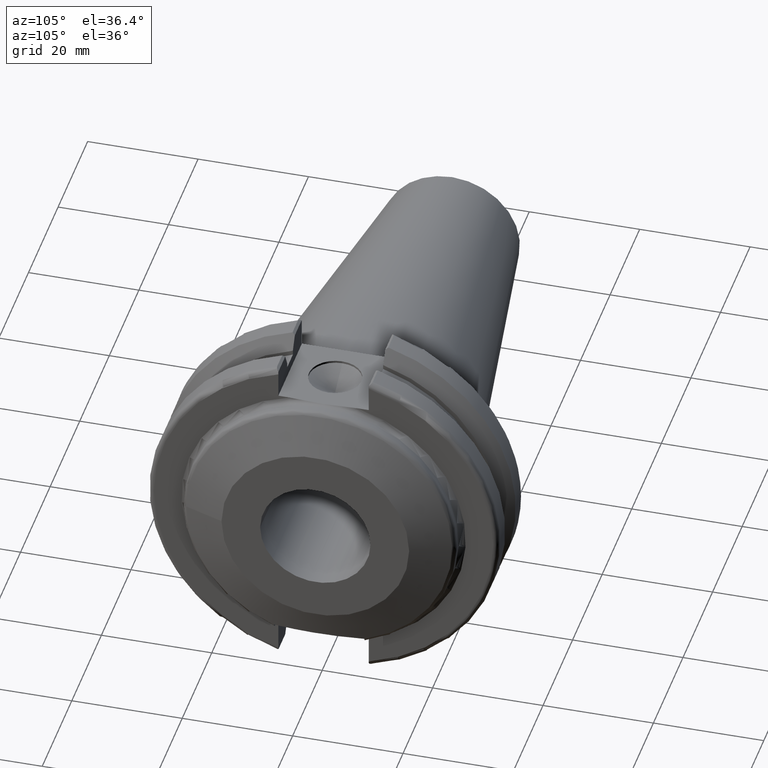
[diagram: clean part render]
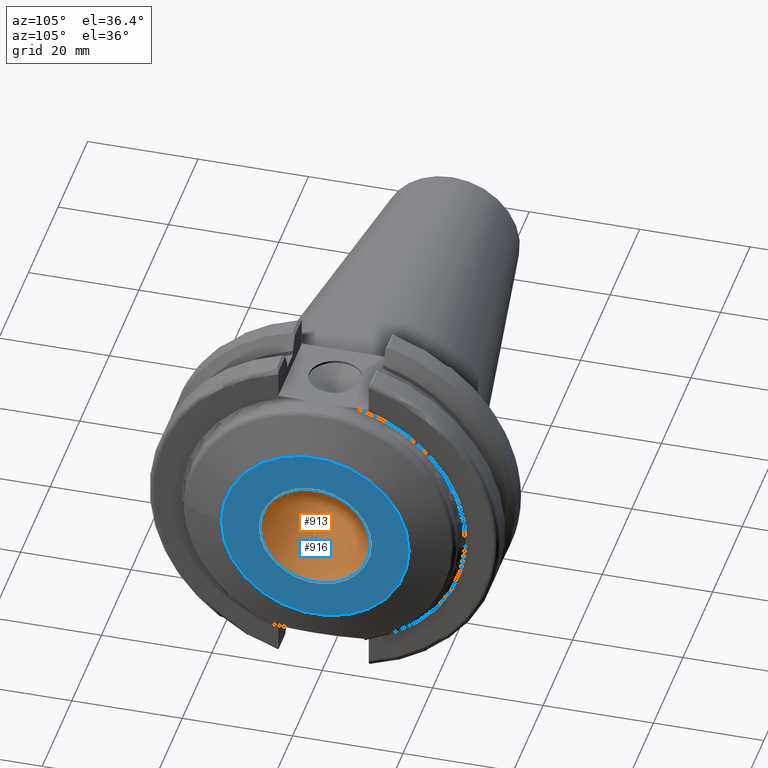
[diagram: same view with the hole feature highlighted: cylindrical wall and planar end face, labeled with their STEP entity ids]
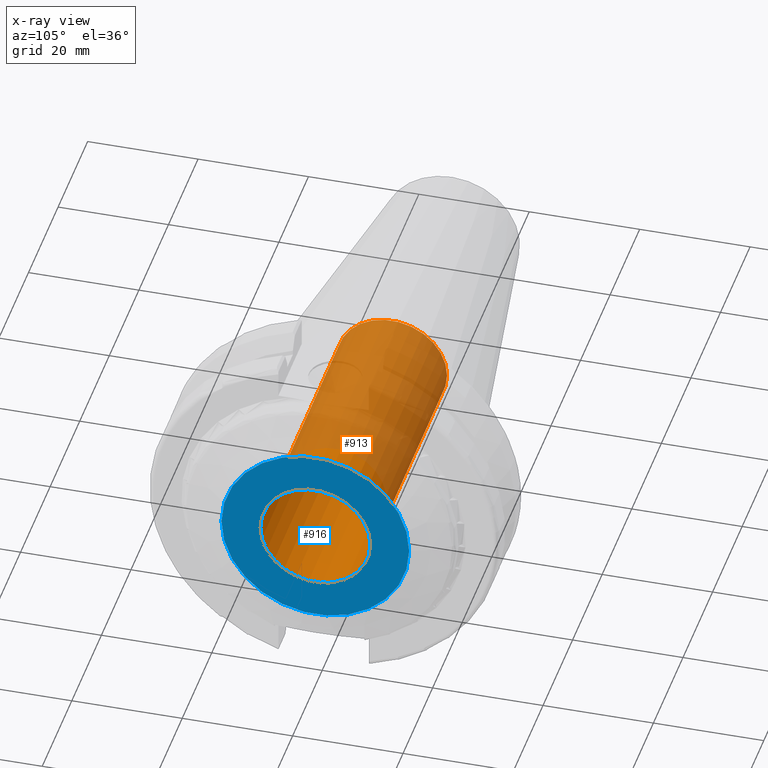
[diagram: x-ray of the same camera — body ghosted, the hole faces saturated]
A machine part, auxiliary view. The highlighted faces form one hole feature of diameter 20 mm: the cylindrical wall (entity #913, orange) and its adjacent planar end face (entity #916, blue) — they share a circular edge in the B-rep.
The next image is the same camera in x-ray (body ghosted, the hole faces saturated) — the bore reads through the body.
Wall:
#21=CYLINDRICAL_SURFACE('',#997,10.);
#54=LINE('',#1476,#110);
#110=VECTOR('',#1130,10.);
#202=FACE_OUTER_BOUND('',#255,.T.);
#255=EDGE_LOOP('',(#657,#658,#659,#660));
#315=CIRCLE('',#998,10.);
#316=CIRCLE('',#999,10.);
#403=VERTEX_POINT('',#1473);
#404=VERTEX_POINT('',#1475);
#504=EDGE_CURVE('',#403,#403,#315,.T.);
#505=EDGE_CURVE('',#403,#404,#54,.T.);
#506=EDGE_CURVE('',#404,#404,#316,.T.);
#657=ORIENTED_EDGE('',*,*,#504,.F.);
#658=ORIENTED_EDGE('',*,*,#505,.T.);
#659=ORIENTED_EDGE('',*,*,#506,.T.);
#660=ORIENTED_EDGE('',*,*,#505,.F.);
#913=ADVANCED_FACE('',(#202),#21,.F.);
#997=AXIS2_PLACEMENT_3D('',#1472,#1126,#1127);
#998=AXIS2_PLACEMENT_3D('',#1474,#1128,#1129);
#999=AXIS2_PLACEMENT_3D('',#1477,#1131,#1132);
#1126=DIRECTION('center_axis',(-1.,0.,0.));
#1127=DIRECTION('ref_axis',(0.,1.,0.));
#1128=DIRECTION('center_axis',(-1.,0.,0.));
#1129=DIRECTION('ref_axis',(0.,1.,0.));
#1130=DIRECTION('',(-1.,0.,0.));
#1131=DIRECTION('center_axis',(-1.,0.,0.));
#1132=DIRECTION('ref_axis',(0.,0.,1.));
#1472=CARTESIAN_POINT('Origin',(-1.25,0.,0.));
#1473=CARTESIAN_POINT('',(24.6,-10.,1.22464679914735E-15));
#1474=CARTESIAN_POINT('Origin',(24.6,0.,0.));
#1475=CARTESIAN_POINT('',(-27.1,-10.,1.22464679914735E-15));
#1476=CARTESIAN_POINT('',(-1.25,-10.,1.22464679914735E-15));
#1477=CARTESIAN_POINT('Origin',(-27.1,0.,0.));
End face:
#16=FACE_BOUND('',#260,.T.);
#175=PLANE('',#1003);
#205=FACE_OUTER_BOUND('',#259,.T.);
#259=EDGE_LOOP('',(#669));
#260=EDGE_LOOP('',(#670));
#310=CIRCLE('',#989,17.);
#315=CIRCLE('',#998,10.);
#394=VERTEX_POINT('',#1424);
#403=VERTEX_POINT('',#1473);
#490=EDGE_CURVE('',#394,#394,#310,.T.);
#504=EDGE_CURVE('',#403,#403,#315,.T.);
#669=ORIENTED_EDGE('',*,*,#490,.T.);
#670=ORIENTED_EDGE('',*,*,#504,.T.);
#916=ADVANCED_FACE('',(#205,#16),#175,.T.);
#989=AXIS2_PLACEMENT_3D('',#1425,#1105,#1106);
#998=AXIS2_PLACEMENT_3D('',#1474,#1128,#1129);
#1003=AXIS2_PLACEMENT_3D('',#1498,#1142,#1143);
#1105=DIRECTION('center_axis',(1.,0.,0.));
#1106=DIRECTION('ref_axis',(0.,0.,-1.));
#1128=DIRECTION('center_axis',(-1.,0.,0.));
#1129=DIRECTION('ref_axis',(0.,1.,0.));
#1142=DIRECTION('center_axis',(1.,0.,0.));
#1143=DIRECTION('ref_axis',(0.,0.,-1.));
#1424=CARTESIAN_POINT('',(24.6,-17.,-2.0818995585505E-15));
#1425=CARTESIAN_POINT('Origin',(24.6,0.,0.));
#1473=CARTESIAN_POINT('',(24.6,-10.,1.22464679914735E-15));
#1474=CARTESIAN_POINT('Origin',(24.6,0.,0.));
#1498=CARTESIAN_POINT('Origin',(24.6,-2.38033801524707E-15,0.));